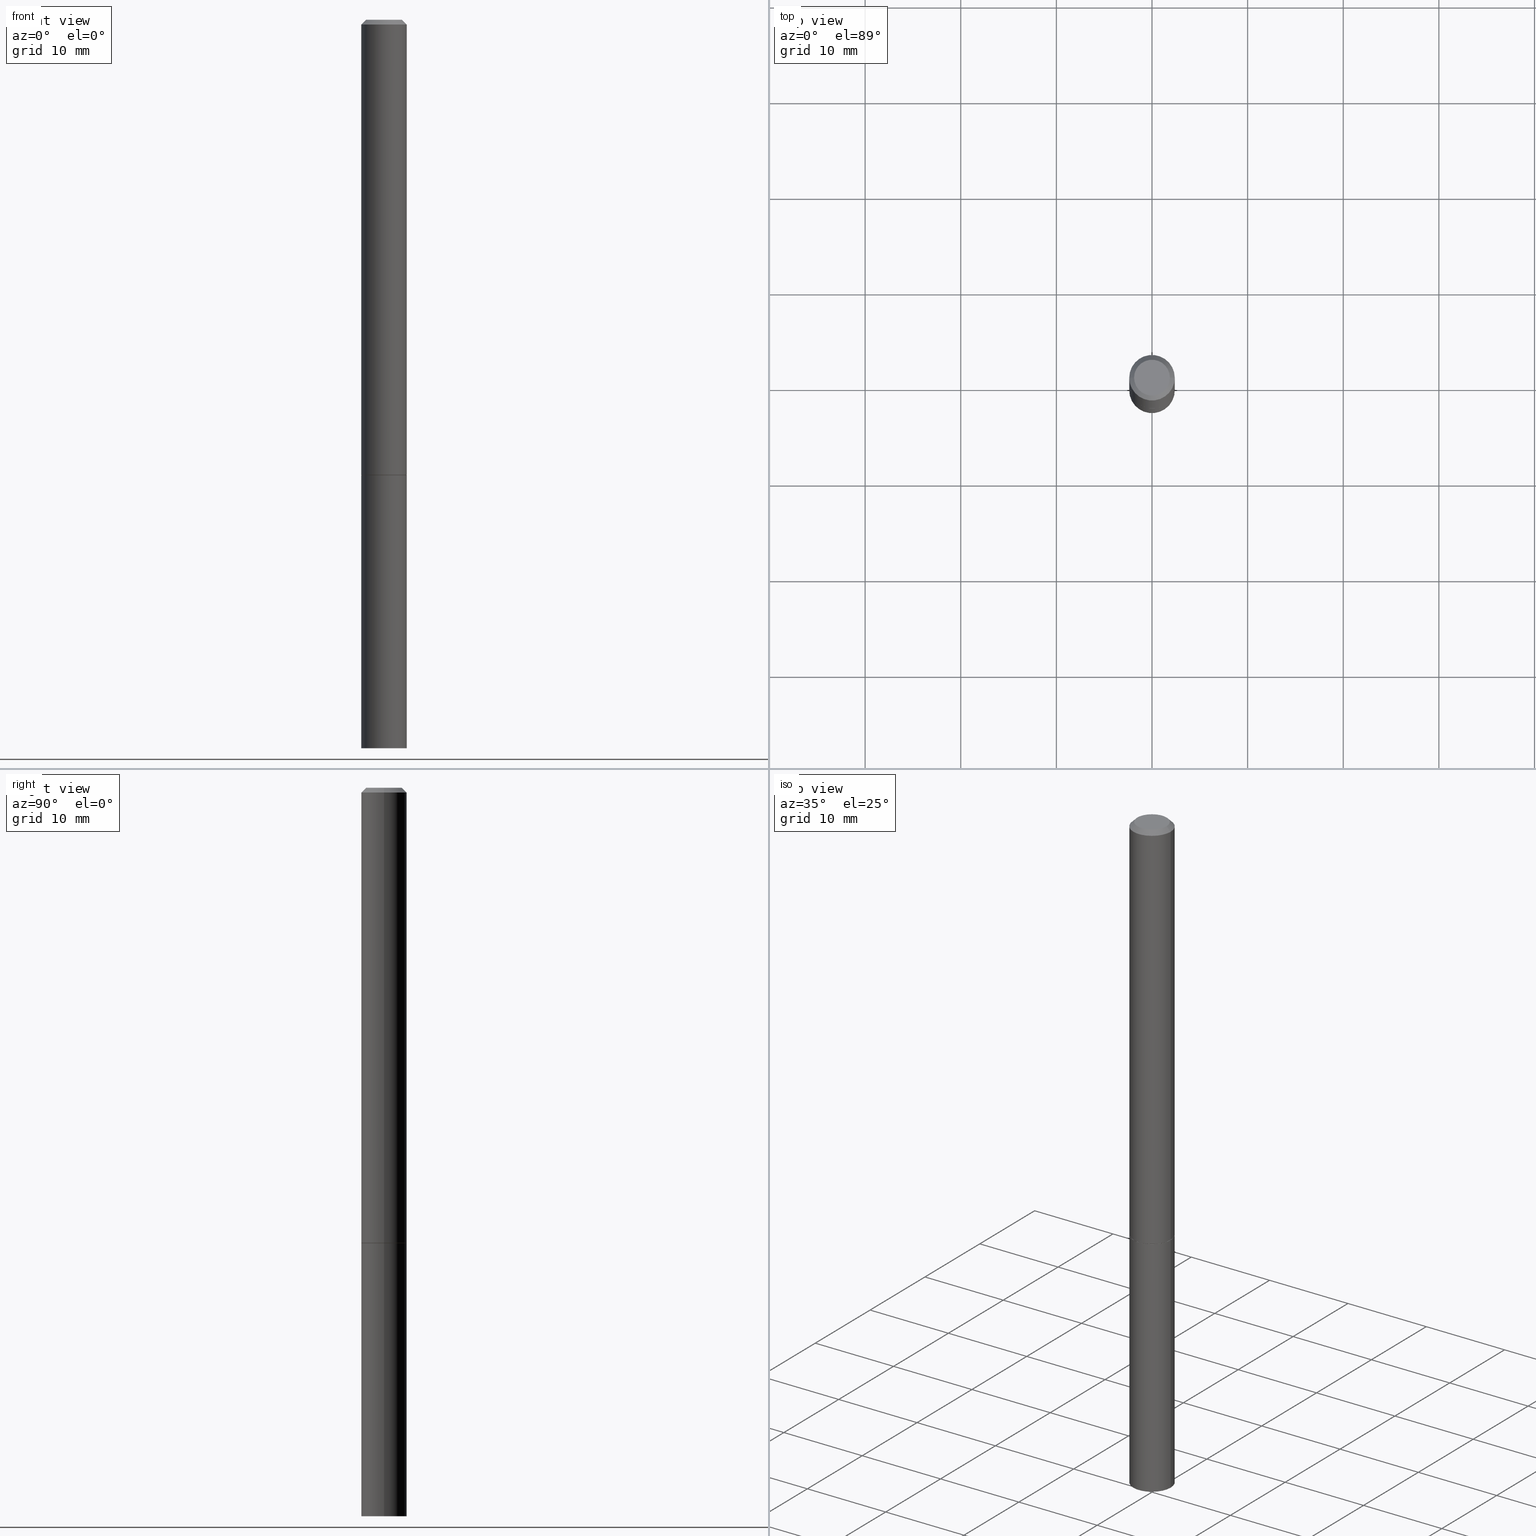
[diagram: canonical four-view strip — front | top / right | iso, engineering-drawing reading convention]
A machine part, canonical four-view strip (front | top / right | iso — engineering-drawing reading convention). The complete STEP part file that produces these views, byte-faithful:
ISO-10303-21;
HEADER;
FILE_DESCRIPTION (( 'STEP AP203' ),
    '1' );
FILE_NAME ('31949.STEP',
    '2024-02-27T14:19:06',
    ( '' ),
    ( '' ),
    'SwSTEP 2.0',
    'SolidWorks 2023',
    '' );
FILE_SCHEMA (( 'CONFIG_CONTROL_DESIGN' ));
ENDSEC;

DATA;
#1 = CIRCLE ( 'NONE', #45, 0.09274999999999999911 ) ;
#2 = DIRECTION ( 'NONE',  ( 1.000000000000000000, -6.982962677686261189E-15, 0.000000000000000000 ) ) ;
#3 = CARTESIAN_POINT ( 'NONE',  ( 0.09374999999999988898, -6.546527510330866166E-16, 4.571415727308684201E-30 ) ) ;
#4 = AXIS2_PLACEMENT_3D ( 'NONE', #272, #127, #121 ) ;
#5 = DIRECTION ( 'NONE',  ( 1.000000000000000000, -6.982962677686273021E-15, 0.000000000000000000 ) ) ;
#6 = ORIENTED_EDGE ( 'NONE', *, *, #42, .T. ) ;
#7 = EDGE_CURVE ( 'NONE', #356, #102, #103, .T. ) ;
#8 = ORIENTED_EDGE ( 'NONE', *, *, #78, .F. ) ;
#9 = VECTOR ( 'NONE', #233, 39.37007874015748143 ) ;
#10 = ORIENTED_EDGE ( 'NONE', *, *, #357, .F. ) ;
#11 = CARTESIAN_POINT ( 'NONE',  ( 0.09375000000000001388, -7.201180261363985422E-15, -1.875000000000000000 ) ) ;
#12 = DIRECTION ( 'NONE',  ( 1.000000000000000000, 0.000000000000000000, 0.000000000000000000 ) ) ;
#13 = DIRECTION ( 'NONE',  ( 1.000000000000000000, -6.982962677686267499E-15, 0.000000000000000000 ) ) ;
#14 = ADVANCED_FACE ( 'NONE', ( #235 ), #80, .T. ) ;
#15 = CONICAL_SURFACE ( 'NONE', #139, 0.09374999999999976408, 0.7853981633974469467 ) ;
#16 = EDGE_LOOP ( 'NONE', ( #301, #70, #249, #6 ) ) ;
#17 = SHAPE_DEFINITION_REPRESENTATION ( #305, #196 ) ;
#18 = PERSON ( 'UNSPECIFIED', 'UNSPECIFIED', 'UNSPECIFIED', ('UNSPECIFIED'), ('UNSPECIFIED'), ('UNSPECIFIED') ) ;
#19 = EDGE_CURVE ( 'NONE', #356, #177, #200, .T. ) ;
#20 = DATE_AND_TIME ( #158, #359 ) ;
#21 = VERTEX_POINT ( 'NONE', #204 ) ;
#22 = DIRECTION ( 'NONE',  ( -2.438088387897960049E-29, 3.491481338843145188E-15, 1.000000000000000000 ) ) ;
#23 = ORIENTED_EDGE ( 'NONE', *, *, #350, .T. ) ;
#24 = DIRECTION ( 'NONE',  ( 1.000000000000000000, -6.982962677686265922E-15, 4.876176775795935793E-29 ) ) ;
#25 = ADVANCED_FACE ( 'NONE', ( #313 ), #171, .T. ) ;
#26 = LINE ( 'NONE', #110, #206 ) ;
#27 = PRODUCT ( '31949', '31949', '', ( #269 ) ) ;
#28 = DIRECTION ( 'NONE',  ( 1.000000000000000000, -6.982962677686265922E-15, 4.876176775795935793E-29 ) ) ;
#29 = EDGE_CURVE ( 'NONE', #102, #356, #1, .T. ) ;
#30 = CALENDAR_DATE ( 2024, 27, 2 ) ;
#31 = DATE_AND_TIME ( #308, #303 ) ;
#32 = PLANE ( 'NONE',  #259 ) ;
#33 = VECTOR ( 'NONE', #87, 39.37007874015748143 ) ;
#34 = COORDINATED_UNIVERSAL_TIME_OFFSET ( 5, 0, .BEHIND. ) ;
#35 = AXIS2_PLACEMENT_3D ( 'NONE', #224, #231, #28 ) ;
#36 = EDGE_CURVE ( 'NONE', #345, #190, #61, .T. ) ;
#37 = APPROVAL_STATUS ( 'not_yet_approved' ) ;
#38 = DATE_AND_TIME ( #91, #230 ) ;
#39 = DIMENSIONAL_EXPONENTS ( 1.000000000000000000, 0.000000000000000000, 0.000000000000000000, 0.000000000000000000, 0.000000000000000000, 0.000000000000000000, 0.000000000000000000 ) ;
#40 = CC_DESIGN_DATE_AND_TIME_ASSIGNMENT ( #90, #198, ( #189 ) ) ;
#41 = CIRCLE ( 'NONE', #276, 0.09375000000000001388 ) ;
#42 = EDGE_CURVE ( 'NONE', #21, #50, #354, .T. ) ;
#43 = DIRECTION ( 'NONE',  ( 2.445468806185136597E-29, -3.491481338843145583E-15, -1.000000000000000000 ) ) ;
#44 = VERTEX_POINT ( 'NONE', #257 ) ;
#45 = AXIS2_PLACEMENT_3D ( 'NONE', #360, #107, #254 ) ;
#46 = EDGE_CURVE ( 'NONE', #190, #345, #217, .T. ) ;
#47 = EDGE_LOOP ( 'NONE', ( #156, #279, #97, #211 ) ) ;
#48 = CARTESIAN_POINT ( 'NONE',  ( 0.09274999999999999911, -7.194197298686300986E-15, -1.875000000000000000 ) ) ;
#49 = CARTESIAN_POINT ( 'NONE',  ( 0.09374999999999976408, -7.130013140679424100E-16, -0.02000000000000001429 ) ) ;
#50 = VERTEX_POINT ( 'NONE', #49 ) ;
#51 = DIRECTION ( 'NONE',  ( -2.445468806185136597E-29, 3.491481338843145583E-15, 1.000000000000000000 ) ) ;
#52 = DESIGN_CONTEXT ( 'detailed design', #74, 'design' ) ;
#53 = PLANE ( 'NONE',  #188 ) ;
#54 = PERSON_AND_ORGANIZATION_ROLE ( 'creator' ) ;
#55 = CLOSED_SHELL ( 'NONE', ( #319, #274, #316, #123 ) ) ;
#56 = ORIENTED_EDGE ( 'NONE', *, *, #19, .F. ) ;
#57 = CARTESIAN_POINT ( 'NONE',  ( 0.09375000000000001388, -1.112909676756252465E-14, -3.000000000000000444 ) ) ;
#58 = ADVANCED_FACE ( 'NONE', ( #225 ), #85, .T. ) ;
#59 = EDGE_LOOP ( 'NONE', ( #161, #101, #297, #284 ) ) ;
#60 = PERSON_AND_ORGANIZATION ( #18, #258 ) ;
#61 = CIRCLE ( 'NONE', #250, 0.09375000000000001388 ) ;
#62 = LINE ( 'NONE', #3, #9 ) ;
#63 = APPROVAL_STATUS ( 'not_yet_approved' ) ;
#64 = CARTESIAN_POINT ( 'NONE',  ( 0.07374999999999981570, -6.094815207017958239E-16, 3.931526600461595946E-30 ) ) ;
#65 = CARTESIAN_POINT ( 'NONE',  ( 4.585254011597131119E-29, -6.546527510330898707E-15, -1.875000000000000000 ) ) ;
#66 = DIRECTION ( 'NONE',  ( 1.000000000000000000, -6.982962677686265133E-15, 4.876176775795935793E-29 ) ) ;
#67 = APPROVAL_PERSON_ORGANIZATION ( #232, #166, #120 ) ;
#68 = LINE ( 'NONE', #142, #149 ) ;
#69 = CARTESIAN_POINT ( 'NONE',  ( 0.000000000000000000, 0.000000000000000000, 0.000000000000000000 ) ) ;
#70 = ORIENTED_EDGE ( 'NONE', *, *, #270, .F. ) ;
#71 = CIRCLE ( 'NONE', #323, 0.09374999999999976408 ) ;
#72 = CARTESIAN_POINT ( 'NONE',  ( 4.890937612370275786E-31, -6.982962677686296539E-17, -0.02000000000000001429 ) ) ;
#73 = ORIENTED_EDGE ( 'NONE', *, *, #240, .F. ) ;
#74 = APPLICATION_CONTEXT ( 'configuration controlled 3d designs of mechanical parts and assemblies' ) ;
#75 = EDGE_LOOP ( 'NONE', ( #23, #174 ) ) ;
#76 = PERSON_AND_ORGANIZATION ( #18, #258 ) ;
#77 = PERSON_AND_ORGANIZATION_ROLE ( 'creator' ) ;
#78 = EDGE_CURVE ( 'NONE', #177, #44, #238, .T. ) ;
#79 = CARTESIAN_POINT ( 'NONE',  ( 7.336406418555409790E-29, -1.047444401652943635E-14, -3.000000000000000444 ) ) ;
#80 = CONICAL_SURFACE ( 'NONE', #275, 0.09274999999999999911, 0.7853981633974141952 ) ;
#81 = CIRCLE ( 'NONE', #151, 0.09375000000000001388 ) ;
#82 = ORIENTED_EDGE ( 'NONE', *, *, #343, .F. ) ;
#83 = DIRECTION ( 'NONE',  ( -2.445468806185136597E-29, 3.491481338843145583E-15, 1.000000000000000000 ) ) ;
#84 = CARTESIAN_POINT ( 'NONE',  ( -0.09374999999999976408, 5.848231242562229240E-16, -0.02000000000000001429 ) ) ;
#85 = CYLINDRICAL_SURFACE ( 'NONE', #146, 0.09374999999999988898 ) ;
#86 = CALENDAR_DATE ( 2024, 27, 2 ) ;
#87 = DIRECTION ( 'NONE',  ( -2.445468806185136877E-29, 3.491481338843145188E-15, 1.000000000000000000 ) ) ;
#88 = PERSON_AND_ORGANIZATION_ROLE ( 'classification_officer' ) ;
#89 = DIRECTION ( 'NONE',  ( -2.445468806185136597E-29, 3.491481338843145583E-15, 1.000000000000000000 ) ) ;
#90 = DATE_AND_TIME ( #30, #179 ) ;
#91 = CALENDAR_DATE ( 2024, 27, 2 ) ;
#92 = ADVANCED_FACE ( 'NONE', ( #298 ), #53, .F. ) ;
#93 = DIRECTION ( 'NONE',  ( 1.000000000000000000, -6.982962677686261189E-15, 0.000000000000000000 ) ) ;
#94 = DIRECTION ( 'NONE',  ( 1.000000000000000000, -6.982962677686273021E-15, 0.000000000000000000 ) ) ;
#95 = DIRECTION ( 'NONE',  ( 0.7071067811865232589, -2.468850131082003836E-15, 0.7071067811865715536 ) ) ;
#96 = CARTESIAN_POINT ( 'NONE',  ( 0.09375000000000001388, -7.197688780025142415E-15, -1.874000000000000110 ) ) ;
#97 = ORIENTED_EDGE ( 'NONE', *, *, #350, .F. ) ;
#98 = CIRCLE ( 'NONE', #289, 0.07374999999999981570 ) ;
#99 = EDGE_LOOP ( 'NONE', ( #105, #267 ) ) ;
#100 = LINE ( 'NONE', #124, #175 ) ;
#101 = ORIENTED_EDGE ( 'NONE', *, *, #180, .T. ) ;
#102 = VERTEX_POINT ( 'NONE', #251 ) ;
#103 = CIRCLE ( 'NONE', #137, 0.09274999999999999911 ) ;
#104 = APPROVAL_DATE_TIME ( #20, #311 ) ;
#105 = ORIENTED_EDGE ( 'NONE', *, *, #270, .T. ) ;
#106 = PLANE ( 'NONE',  #351 ) ;
#107 = DIRECTION ( 'NONE',  ( -2.445468806185136597E-29, 3.491481338843145583E-15, 1.000000000000000000 ) ) ;
#108 = ORIENTED_EDGE ( 'NONE', *, *, #335, .F. ) ;
#109 = CARTESIAN_POINT ( 'NONE',  ( 0.000000000000000000, 0.000000000000000000, 0.000000000000000000 ) ) ;
#110 = CARTESIAN_POINT ( 'NONE',  ( -0.09375000000000001388, 6.661338147750940229E-16, -4.611501647113973995E-30 ) ) ;
#111 = CLOSED_SHELL ( 'NONE', ( #14, #135, #148, #25, #58, #227, #92, #203 ) ) ;
#112 =( GEOMETRIC_REPRESENTATION_CONTEXT ( 3 ) GLOBAL_UNCERTAINTY_ASSIGNED_CONTEXT ( ( #366 ) ) GLOBAL_UNIT_ASSIGNED_CONTEXT ( ( #306, #277, #141 ) ) REPRESENTATION_CONTEXT ( 'NONE', 'WORKASPACE' ) );
#113 = DIRECTION ( 'NONE',  ( 2.438088387897960049E-29, -3.491481338843145188E-15, -1.000000000000000000 ) ) ;
#114 = EDGE_CURVE ( 'NONE', #345, #252, #202, .T. ) ;
#115 = COORDINATED_UNIVERSAL_TIME_OFFSET ( 5, 0, .BEHIND. ) ;
#116 = COORDINATED_UNIVERSAL_TIME_OFFSET ( 5, 0, .BEHIND. ) ;
#117 = APPROVAL_PERSON_ORGANIZATION ( #239, #201, #147 ) ;
#118 = CARTESIAN_POINT ( 'NONE',  ( 0.09375000000000001388, -6.546527510330875041E-16, 4.571415727308690506E-30 ) ) ;
#119 = ORIENTED_EDGE ( 'NONE', *, *, #240, .T. ) ;
#120 = APPROVAL_ROLE ( '' ) ;
#121 = DIRECTION ( 'NONE',  ( 1.000000000000000000, -6.982962677686273021E-15, 0.000000000000000000 ) ) ;
#122 = VERTEX_POINT ( 'NONE', #264 ) ;
#123 = ADVANCED_FACE ( 'NONE', ( #312 ), #197, .T. ) ;
#124 = CARTESIAN_POINT ( 'NONE',  ( 0.09374999999999976408, -7.130013140679424100E-16, -0.02000000000000001429 ) ) ;
#125 = CC_DESIGN_DATE_AND_TIME_ASSIGNMENT ( #228, #261, ( #145 ) ) ;
#126 = CC_DESIGN_PERSON_AND_ORGANIZATION_ASSIGNMENT ( #60, #184, ( #243 ) ) ;
#127 = DIRECTION ( 'NONE',  ( -2.445468806185136597E-29, 3.491481338843145583E-15, 1.000000000000000000 ) ) ;
#128 = AXIS2_PLACEMENT_3D ( 'NONE', #199, #307, #66 ) ;
#129 = CC_DESIGN_APPROVAL ( #166, ( #243 ) ) ;
#130 = ORIENTED_EDGE ( 'NONE', *, *, #327, .F. ) ;
#131 = APPLICATION_CONTEXT ( 'configuration controlled 3d designs of mechanical parts and assemblies' ) ;
#132 = FACE_OUTER_BOUND ( 'NONE', #99, .T. ) ;
#133 = DIRECTION ( 'NONE',  ( -2.445468806185136597E-29, 3.491481338843145583E-15, 1.000000000000000000 ) ) ;
#134 = ORIENTED_EDGE ( 'NONE', *, *, #46, .T. ) ;
#135 = ADVANCED_FACE ( 'NONE', ( #144 ), #349, .T. ) ;
#136 = DIRECTION ( 'NONE',  ( 1.000000000000000000, -6.982962677686265922E-15, 4.876176775795935793E-29 ) ) ;
#137 = AXIS2_PLACEMENT_3D ( 'NONE', #194, #256, #94 ) ;
#138 = ORIENTED_EDGE ( 'NONE', *, *, #7, .T. ) ;
#139 = AXIS2_PLACEMENT_3D ( 'NONE', #72, #43, #293 ) ;
#140 = VECTOR ( 'NONE', #344, 39.37007874015748143 ) ;
#141 =( NAMED_UNIT ( * ) SI_UNIT ( $, .STERADIAN. ) SOLID_ANGLE_UNIT ( ) );
#142 = CARTESIAN_POINT ( 'NONE',  ( -0.09374999999999988898, 6.661338147750931354E-16, -4.611501647113968390E-30 ) ) ;
#143 = APPROVAL_DATE_TIME ( #31, #166 ) ;
#144 = FACE_OUTER_BOUND ( 'NONE', #59, .T. ) ;
#145 = PRODUCT_DEFINITION ( 'UNKNOWN', '', #243, #52 ) ;
#146 = AXIS2_PLACEMENT_3D ( 'NONE', #296, #157, #278 ) ;
#147 = APPROVAL_ROLE ( '' ) ;
#148 = ADVANCED_FACE ( 'NONE', ( #271 ), #15, .T. ) ;
#149 = VECTOR ( 'NONE', #341, 39.37007874015748143 ) ;
#150 = DIRECTION ( 'NONE',  ( -0.7071067811865232589, 7.493145998870265808E-15, 0.7071067811865715536 ) ) ;
#151 = AXIS2_PLACEMENT_3D ( 'NONE', #234, #346, #191 ) ;
#152 = DIRECTION ( 'NONE',  ( -2.445468806185136597E-29, 3.491481338843145583E-15, 1.000000000000000000 ) ) ;
#153 = FACE_OUTER_BOUND ( 'NONE', #186, .T. ) ;
#154 = EDGE_LOOP ( 'NONE', ( #138, #119, #8, #56 ) ) ;
#155 = CARTESIAN_POINT ( 'NONE',  ( 4.890937612370275786E-31, -6.982962677686296539E-17, -0.02000000000000001429 ) ) ;
#156 = ORIENTED_EDGE ( 'NONE', *, *, #36, .T. ) ;
#157 = DIRECTION ( 'NONE',  ( -2.445468806185136597E-29, 3.491481338843145583E-15, 1.000000000000000000 ) ) ;
#158 = CALENDAR_DATE ( 2024, 27, 2 ) ;
#159 = ORIENTED_EDGE ( 'NONE', *, *, #335, .T. ) ;
#160 = CARTESIAN_POINT ( 'NONE',  ( 4.585254011597131119E-29, -6.546527510330898707E-15, -1.875000000000000000 ) ) ;
#161 = ORIENTED_EDGE ( 'NONE', *, *, #78, .T. ) ;
#162 = CONICAL_SURFACE ( 'NONE', #4, 0.09274999999999999911, 0.7853981633974141952 ) ;
#163 = ORIENTED_EDGE ( 'NONE', *, *, #7, .F. ) ;
#164 = DIRECTION ( 'NONE',  ( 2.438088387897960049E-29, -3.491481338843145188E-15, -1.000000000000000000 ) ) ;
#165 = ORIENTED_EDGE ( 'NONE', *, *, #29, .T. ) ;
#166 = APPROVAL ( #63, 'UNSPECIFIED' ) ;
#167 = AXIS2_PLACEMENT_3D ( 'NONE', #69, #241, #12 ) ;
#168 = EDGE_CURVE ( 'NONE', #50, #21, #71, .T. ) ;
#169 = DIRECTION ( 'NONE',  ( 1.000000000000000000, -6.982962677686265922E-15, 4.876176775795935793E-29 ) ) ;
#170 = DIRECTION ( 'NONE',  ( -2.445468806185136597E-29, 3.491481338843145583E-15, 1.000000000000000000 ) ) ;
#171 = CONICAL_SURFACE ( 'NONE', #309, 0.09374999999999976408, 0.7853981633974469467 ) ;
#172 = APPLICATION_PROTOCOL_DEFINITION ( 'international standard', 'config_control_design', 1994, #131 ) ;
#173 = EDGE_LOOP ( 'NONE', ( #221, #329, #321, #130 ) ) ;
#174 = ORIENTED_EDGE ( 'NONE', *, *, #357, .T. ) ;
#175 = VECTOR ( 'NONE', #236, 39.37007874015748143 ) ;
#176 = ORIENTED_EDGE ( 'NONE', *, *, #36, .F. ) ;
#177 = VERTEX_POINT ( 'NONE', #96 ) ;
#178 = FACE_OUTER_BOUND ( 'NONE', #208, .T. ) ;
#179 = LOCAL_TIME ( 9, 19, 6.000000000000000000, #34 ) ;
#180 = EDGE_CURVE ( 'NONE', #44, #21, #68, .T. ) ;
#181 = APPROVAL_ROLE ( '' ) ;
#182 = ORIENTED_EDGE ( 'NONE', *, *, #286, .T. ) ;
#183 = DIRECTION ( 'NONE',  ( 1.000000000000000000, -6.982962677686261189E-15, 0.000000000000000000 ) ) ;
#184 = PERSON_AND_ORGANIZATION_ROLE ( 'design_supplier' ) ;
#185 = ORIENTED_EDGE ( 'NONE', *, *, #19, .T. ) ;
#186 = EDGE_LOOP ( 'NONE', ( #73, #165, #185, #108 ) ) ;
#187 = CARTESIAN_POINT ( 'NONE',  ( 5.149934974793608091E-16, 0.07374999999999981570, -2.574967487396813413E-16 ) ) ;
#188 = AXIS2_PLACEMENT_3D ( 'NONE', #160, #22, #136 ) ;
#189 = SECURITY_CLASSIFICATION ( '', '', #299 ) ;
#190 = VERTEX_POINT ( 'NONE', #195 ) ;
#191 = DIRECTION ( 'NONE',  ( 1.000000000000000000, -6.982962677686261189E-15, 0.000000000000000000 ) ) ;
#192 = CARTESIAN_POINT ( 'NONE',  ( 6.546527510331333567E-16, 0.09374999999999346356, -1.875000000000000444 ) ) ;
#193 = DIRECTION ( 'NONE',  ( 1.000000000000000000, -6.982962677686261189E-15, 0.000000000000000000 ) ) ;
#194 = CARTESIAN_POINT ( 'NONE',  ( 4.585254011597131119E-29, -6.546527510330898707E-15, -1.875000000000000000 ) ) ;
#195 = CARTESIAN_POINT ( 'NONE',  ( -0.09375000000000001388, -7.844351948655072817E-15, -3.000000000000000444 ) ) ;
#196 = ADVANCED_BREP_SHAPE_REPRESENTATION ( '31949', ( #294, #282, #167 ), #112 ) ;
#197 = CYLINDRICAL_SURFACE ( 'NONE', #302, 0.09375000000000001388 ) ;
#198 = DATE_TIME_ROLE ( 'classification_date' ) ;
#199 = CARTESIAN_POINT ( 'NONE',  ( 0.000000000000000000, 0.000000000000000000, 0.000000000000000000 ) ) ;
#200 = LINE ( 'NONE', #347, #205 ) ;
#201 = APPROVAL ( #37, 'UNSPECIFIED' ) ;
#202 = LINE ( 'NONE', #118, #33 ) ;
#203 = ADVANCED_FACE ( 'NONE', ( #132 ), #106, .F. ) ;
#204 = CARTESIAN_POINT ( 'NONE',  ( -0.09374999999999976408, 5.848231242562229240E-16, -0.02000000000000001429 ) ) ;
#205 = VECTOR ( 'NONE', #95, 39.37007874015748854 ) ;
#206 = VECTOR ( 'NONE', #253, 39.37007874015748143 ) ;
#207 = APPROVAL_DATE_TIME ( #38, #201 ) ;
#208 = EDGE_LOOP ( 'NONE', ( #176, #317 ) ) ;
#209 = CC_DESIGN_PERSON_AND_ORGANIZATION_ASSIGNMENT ( #353, #283, ( #27 ) ) ;
#210 = VECTOR ( 'NONE', #150, 39.37007874015748854 ) ;
#211 = ORIENTED_EDGE ( 'NONE', *, *, #114, .F. ) ;
#212 = DIRECTION ( 'NONE',  ( -1.000000000000000000, 6.982962677686265922E-15, -4.876176775795935793E-29 ) ) ;
#213 = DIRECTION ( 'NONE',  ( 2.445468806185136597E-29, -3.491481338843145583E-15, -1.000000000000000000 ) ) ;
#214 = APPLICATION_PROTOCOL_DEFINITION ( 'international standard', 'config_control_design', 1994, #74 ) ;
#215 = EDGE_LOOP ( 'NONE', ( #82, #134, #358, #10 ) ) ;
#216 = CARTESIAN_POINT ( 'NONE',  ( 6.546527510331608682E-16, 0.09374999999998953615, -3.000000000000000888 ) ) ;
#217 = CIRCLE ( 'NONE', #334, 0.09375000000000001388 ) ;
#218 = CC_DESIGN_SECURITY_CLASSIFICATION ( #189, ( #243 ) ) ;
#219 = DIRECTION ( 'NONE',  ( -2.445468806185136597E-29, 3.491481338843145583E-15, 1.000000000000000000 ) ) ;
#220 = COORDINATED_UNIVERSAL_TIME_OFFSET ( 5, 0, .BEHIND. ) ;
#221 = ORIENTED_EDGE ( 'NONE', *, *, #280, .F. ) ;
#222 = CARTESIAN_POINT ( 'NONE',  ( 4.890937612370275786E-31, -6.982962677686296539E-17, -0.02000000000000001429 ) ) ;
#223 = AXIS2_PLACEMENT_3D ( 'NONE', #216, #164, #300 ) ;
#224 = CARTESIAN_POINT ( 'NONE',  ( 0.000000000000000000, 0.000000000000000000, 0.000000000000000000 ) ) ;
#225 = FACE_OUTER_BOUND ( 'NONE', #320, .T. ) ;
#226 = PERSON_AND_ORGANIZATION ( #18, #258 ) ;
#227 = ADVANCED_FACE ( 'NONE', ( #153 ), #162, .T. ) ;
#228 = DATE_AND_TIME ( #86, #325 ) ;
#229 = DIRECTION ( 'NONE',  ( -1.000000000000000000, 6.982962677686265922E-15, -4.876176775795935793E-29 ) ) ;
#230 = LOCAL_TIME ( 9, 19, 6.000000000000000000, #116 ) ;
#231 = DIRECTION ( 'NONE',  ( -2.445468806185136597E-29, 3.491481338843145583E-15, 1.000000000000000000 ) ) ;
#232 = PERSON_AND_ORGANIZATION ( #18, #258 ) ;
#233 = DIRECTION ( 'NONE',  ( -2.445468806185136877E-29, 3.491481338843145188E-15, 1.000000000000000000 ) ) ;
#234 = CARTESIAN_POINT ( 'NONE',  ( 4.585254011597131119E-29, -6.546527510330898707E-15, -1.875000000000000000 ) ) ;
#235 = FACE_OUTER_BOUND ( 'NONE', #154, .T. ) ;
#236 = DIRECTION ( 'NONE',  ( 0.7071067811865465735, -7.319954787623252890E-15, -0.7071067811865484609 ) ) ;
#237 = CARTESIAN_POINT ( 'NONE',  ( 0.000000000000000000, 0.000000000000000000, 0.000000000000000000 ) ) ;
#238 = CIRCLE ( 'NONE', #318, 0.09375000000000001388 ) ;
#239 = PERSON_AND_ORGANIZATION ( #18, #258 ) ;
#240 = EDGE_CURVE ( 'NONE', #102, #44, #242, .T. ) ;
#241 = DIRECTION ( 'NONE',  ( 0.000000000000000000, 0.000000000000000000, 1.000000000000000000 ) ) ;
#242 = LINE ( 'NONE', #355, #210 ) ;
#243 = PRODUCT_DEFINITION_FORMATION_WITH_SPECIFIED_SOURCE ( 'ANY', '', #27, .NOT_KNOWN. ) ;
#244 = CARTESIAN_POINT ( 'NONE',  ( 4.890937612370275786E-31, -6.982962677686296539E-17, -0.02000000000000001429 ) ) ;
#245 = PRODUCT_RELATED_PRODUCT_CATEGORY ( 'detail', '', ( #27 ) ) ;
#246 = ORIENTED_EDGE ( 'NONE', *, *, #29, .F. ) ;
#247 = PLANE ( 'NONE',  #223 ) ;
#248 = CARTESIAN_POINT ( 'NONE',  ( 4.582808542790945516E-29, -6.543036028992054911E-15, -1.874000000000000110 ) ) ;
#249 = ORIENTED_EDGE ( 'NONE', *, *, #327, .T. ) ;
#250 = AXIS2_PLACEMENT_3D ( 'NONE', #363, #219, #193 ) ;
#251 = CARTESIAN_POINT ( 'NONE',  ( -0.09274999999999999911, -5.882200668565183389E-15, -1.875000000000000000 ) ) ;
#252 = VERTEX_POINT ( 'NONE', #11 ) ;
#253 = DIRECTION ( 'NONE',  ( -2.445468806185136877E-29, 3.491481338843145188E-15, 1.000000000000000000 ) ) ;
#254 = DIRECTION ( 'NONE',  ( 1.000000000000000000, -6.982962677686273021E-15, 0.000000000000000000 ) ) ;
#255 = CC_DESIGN_PERSON_AND_ORGANIZATION_ASSIGNMENT ( #328, #77, ( #145 ) ) ;
#256 = DIRECTION ( 'NONE',  ( -2.445468806185136597E-29, 3.491481338843145583E-15, 1.000000000000000000 ) ) ;
#257 = CARTESIAN_POINT ( 'NONE',  ( -0.09375000000000001388, -2.640299013109360447E-15, -1.874000000000000110 ) ) ;
#258 = ORGANIZATION ( 'UNSPECIFIED', 'UNSPECIFIED', '' ) ;
#259 = AXIS2_PLACEMENT_3D ( 'NONE', #192, #113, #229 ) ;
#260 = EDGE_CURVE ( 'NONE', #324, #50, #100, .T. ) ;
#261 = DATE_TIME_ROLE ( 'creation_date' ) ;
#262 = CARTESIAN_POINT ( 'NONE',  ( 4.582808542790945516E-29, -6.543036028992054911E-15, -1.874000000000000110 ) ) ;
#263 = PERSON_AND_ORGANIZATION ( #18, #258 ) ;
#264 = CARTESIAN_POINT ( 'NONE',  ( -0.09375000000000001388, -7.844351948655072817E-15, -1.875000000000000000 ) ) ;
#265 = CC_DESIGN_APPROVAL ( #311, ( #145 ) ) ;
#266 = VERTEX_POINT ( 'NONE', #348 ) ;
#267 = ORIENTED_EDGE ( 'NONE', *, *, #280, .T. ) ;
#268 = DIRECTION ( 'NONE',  ( -2.445468806185136597E-29, 3.491481338843145583E-15, 1.000000000000000000 ) ) ;
#269 = MECHANICAL_CONTEXT ( 'NONE', #131, 'mechanical' ) ;
#270 = EDGE_CURVE ( 'NONE', #266, #324, #98, .T. ) ;
#271 = FACE_OUTER_BOUND ( 'NONE', #173, .T. ) ;
#272 = CARTESIAN_POINT ( 'NONE',  ( 4.585254011597131119E-29, -6.546527510330898707E-15, -1.875000000000000000 ) ) ;
#273 = CC_DESIGN_PERSON_AND_ORGANIZATION_ASSIGNMENT ( #226, #88, ( #189 ) ) ;
#274 = ADVANCED_FACE ( 'NONE', ( #178 ), #247, .T. ) ;
#275 = AXIS2_PLACEMENT_3D ( 'NONE', #65, #170, #5 ) ;
#276 = AXIS2_PLACEMENT_3D ( 'NONE', #262, #89, #93 ) ;
#277 =( NAMED_UNIT ( * ) PLANE_ANGLE_UNIT ( ) SI_UNIT ( $, .RADIAN. ) );
#278 = DIRECTION ( 'NONE',  ( 1.000000000000000000, -6.982962677686265133E-15, 4.876176775795935793E-29 ) ) ;
#279 = ORIENTED_EDGE ( 'NONE', *, *, #343, .T. ) ;
#280 = EDGE_CURVE ( 'NONE', #324, #266, #314, .T. ) ;
#281 = DIRECTION ( 'NONE',  ( -1.000000000000000000, 6.982962677686267499E-15, 0.000000000000000000 ) ) ;
#282 = MANIFOLD_SOLID_BREP ( 'Body-Move/Copy2[2]', #111 ) ;
#283 = PERSON_AND_ORGANIZATION_ROLE ( 'design_owner' ) ;
#284 = ORIENTED_EDGE ( 'NONE', *, *, #286, .F. ) ;
#285 = CYLINDRICAL_SURFACE ( 'NONE', #35, 0.09375000000000001388 ) ;
#286 = EDGE_CURVE ( 'NONE', #177, #50, #62, .T. ) ;
#287 = FACE_OUTER_BOUND ( 'NONE', #47, .T. ) ;
#288 = COORDINATED_UNIVERSAL_TIME_OFFSET ( 5, 0, .BEHIND. ) ;
#289 = AXIS2_PLACEMENT_3D ( 'NONE', #315, #268, #322 ) ;
#290 = CIRCLE ( 'NONE', #342, 0.09375000000000001388 ) ;
#291 = AXIS2_PLACEMENT_3D ( 'NONE', #222, #133, #331 ) ;
#292 = CC_DESIGN_APPROVAL ( #201, ( #189 ) ) ;
#293 = DIRECTION ( 'NONE',  ( -1.000000000000000000, 6.982962677686267499E-15, 0.000000000000000000 ) ) ;
#294 = MANIFOLD_SOLID_BREP ( 'Body-Move/Copy2[1]', #55 ) ;
#295 = AXIS2_PLACEMENT_3D ( 'NONE', #109, #51, #24 ) ;
#296 = CARTESIAN_POINT ( 'NONE',  ( 0.000000000000000000, 0.000000000000000000, 0.000000000000000000 ) ) ;
#297 = ORIENTED_EDGE ( 'NONE', *, *, #168, .F. ) ;
#298 = FACE_OUTER_BOUND ( 'NONE', #330, .T. ) ;
#299 = SECURITY_CLASSIFICATION_LEVEL ( 'unclassified' ) ;
#300 = DIRECTION ( 'NONE',  ( -1.000000000000000000, 6.982962677686265922E-15, -4.876176775795935793E-29 ) ) ;
#301 = ORIENTED_EDGE ( 'NONE', *, *, #260, .F. ) ;
#302 = AXIS2_PLACEMENT_3D ( 'NONE', #237, #310, #169 ) ;
#303 = LOCAL_TIME ( 9, 19, 6.000000000000000000, #115 ) ;
#304 = DIRECTION ( 'NONE',  ( -2.445468806185136597E-29, 3.491481338843145583E-15, 1.000000000000000000 ) ) ;
#305 = PRODUCT_DEFINITION_SHAPE ( 'NONE', 'NONE',  #145 ) ;
#306 =( CONVERSION_BASED_UNIT ( 'INCH', #333 ) LENGTH_UNIT ( ) NAMED_UNIT ( #39 ) );
#307 = DIRECTION ( 'NONE',  ( -2.445468806185136597E-29, 3.491481338843145583E-15, 1.000000000000000000 ) ) ;
#308 = CALENDAR_DATE ( 2024, 27, 2 ) ;
#309 = AXIS2_PLACEMENT_3D ( 'NONE', #244, #213, #281 ) ;
#310 = DIRECTION ( 'NONE',  ( -2.445468806185136597E-29, 3.491481338843145583E-15, 1.000000000000000000 ) ) ;
#311 = APPROVAL ( #336, 'UNSPECIFIED' ) ;
#312 = FACE_OUTER_BOUND ( 'NONE', #215, .T. ) ;
#313 = FACE_OUTER_BOUND ( 'NONE', #16, .T. ) ;
#314 = CIRCLE ( 'NONE', #295, 0.07374999999999981570 ) ;
#315 = CARTESIAN_POINT ( 'NONE',  ( 0.000000000000000000, 0.000000000000000000, 0.000000000000000000 ) ) ;
#316 = ADVANCED_FACE ( 'NONE', ( #340 ), #32, .F. ) ;
#317 = ORIENTED_EDGE ( 'NONE', *, *, #46, .F. ) ;
#318 = AXIS2_PLACEMENT_3D ( 'NONE', #248, #326, #183 ) ;
#319 = ADVANCED_FACE ( 'NONE', ( #287 ), #285, .T. ) ;
#320 = EDGE_LOOP ( 'NONE', ( #332, #159, #182, #362 ) ) ;
#321 = ORIENTED_EDGE ( 'NONE', *, *, #168, .T. ) ;
#322 = DIRECTION ( 'NONE',  ( 1.000000000000000000, -6.982962677686265922E-15, 4.876176775795935793E-29 ) ) ;
#323 = AXIS2_PLACEMENT_3D ( 'NONE', #155, #152, #13 ) ;
#324 = VERTEX_POINT ( 'NONE', #64 ) ;
#325 = LOCAL_TIME ( 9, 19, 6.000000000000000000, #288 ) ;
#326 = DIRECTION ( 'NONE',  ( -2.445468806185136597E-29, 3.491481338843145583E-15, 1.000000000000000000 ) ) ;
#327 = EDGE_CURVE ( 'NONE', #266, #21, #338, .T. ) ;
#328 = PERSON_AND_ORGANIZATION ( #18, #258 ) ;
#329 = ORIENTED_EDGE ( 'NONE', *, *, #260, .T. ) ;
#330 = EDGE_LOOP ( 'NONE', ( #163, #246 ) ) ;
#331 = DIRECTION ( 'NONE',  ( 1.000000000000000000, -6.982962677686267499E-15, 0.000000000000000000 ) ) ;
#332 = ORIENTED_EDGE ( 'NONE', *, *, #180, .F. ) ;
#333 = LENGTH_MEASURE_WITH_UNIT ( LENGTH_MEASURE( 0.02539999999999999897 ), #339 );
#334 = AXIS2_PLACEMENT_3D ( 'NONE', #79, #304, #2 ) ;
#335 = EDGE_CURVE ( 'NONE', #44, #177, #41, .T. ) ;
#336 = APPROVAL_STATUS ( 'not_yet_approved' ) ;
#337 = DIRECTION ( 'NONE',  ( 1.000000000000000000, -6.982962677686261189E-15, 0.000000000000000000 ) ) ;
#338 = LINE ( 'NONE', #84, #140 ) ;
#339 =( LENGTH_UNIT ( ) NAMED_UNIT ( * ) SI_UNIT ( $, .METRE. ) );
#340 = FACE_OUTER_BOUND ( 'NONE', #75, .T. ) ;
#341 = DIRECTION ( 'NONE',  ( -2.445468806185136877E-29, 3.491481338843145188E-15, 1.000000000000000000 ) ) ;
#342 = AXIS2_PLACEMENT_3D ( 'NONE', #365, #83, #337 ) ;
#343 = EDGE_CURVE ( 'NONE', #190, #122, #26, .T. ) ;
#344 = DIRECTION ( 'NONE',  ( -0.7071067811865465735, 2.468850131082246805E-15, -0.7071067811865484609 ) ) ;
#345 = VERTEX_POINT ( 'NONE', #57 ) ;
#346 = DIRECTION ( 'NONE',  ( -2.445468806185136597E-29, 3.491481338843145583E-15, 1.000000000000000000 ) ) ;
#347 = CARTESIAN_POINT ( 'NONE',  ( 0.09274999999999999911, -7.194197298686300986E-15, -1.875000000000000000 ) ) ;
#348 = CARTESIAN_POINT ( 'NONE',  ( -0.07374999999999981570, 5.499083108677918666E-16, -3.723527850031184862E-30 ) ) ;
#349 = CYLINDRICAL_SURFACE ( 'NONE', #128, 0.09374999999999988898 ) ;
#350 = EDGE_CURVE ( 'NONE', #252, #122, #81, .T. ) ;
#351 = AXIS2_PLACEMENT_3D ( 'NONE', #187, #364, #212 ) ;
#352 = APPROVAL_PERSON_ORGANIZATION ( #76, #311, #181 ) ;
#353 = PERSON_AND_ORGANIZATION ( #18, #258 ) ;
#354 = CIRCLE ( 'NONE', #291, 0.09374999999999976408 ) ;
#355 = CARTESIAN_POINT ( 'NONE',  ( -0.09274999999999999911, -5.887499122913405791E-15, -1.875000000000000000 ) ) ;
#356 = VERTEX_POINT ( 'NONE', #48 ) ;
#357 = EDGE_CURVE ( 'NONE', #122, #252, #290, .T. ) ;
#358 = ORIENTED_EDGE ( 'NONE', *, *, #114, .T. ) ;
#359 = LOCAL_TIME ( 9, 19, 6.000000000000000000, #220 ) ;
#360 = CARTESIAN_POINT ( 'NONE',  ( 4.585254011597131119E-29, -6.546527510330898707E-15, -1.875000000000000000 ) ) ;
#361 = CC_DESIGN_PERSON_AND_ORGANIZATION_ASSIGNMENT ( #263, #54, ( #243 ) ) ;
#362 = ORIENTED_EDGE ( 'NONE', *, *, #42, .F. ) ;
#363 = CARTESIAN_POINT ( 'NONE',  ( 7.336406418555409790E-29, -1.047444401652943635E-14, -3.000000000000000444 ) ) ;
#364 = DIRECTION ( 'NONE',  ( 2.438088387897960049E-29, -3.491481338843145188E-15, -1.000000000000000000 ) ) ;
#365 = CARTESIAN_POINT ( 'NONE',  ( 4.585254011597131119E-29, -6.546527510330898707E-15, -1.875000000000000000 ) ) ;
#366 = UNCERTAINTY_MEASURE_WITH_UNIT (LENGTH_MEASURE( 1.000000000000000082E-05 ), #306, 'distance_accuracy_value', 'NONE');
ENDSEC;
END-ISO-10303-21;
